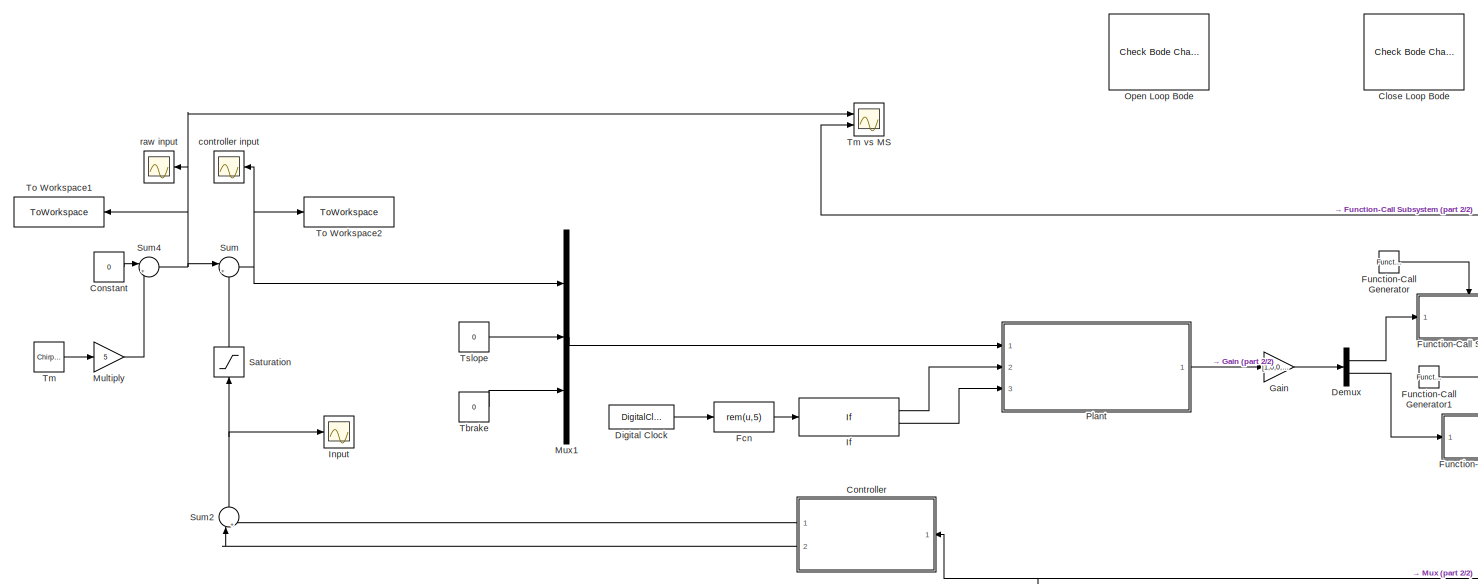
[diagram: root canvas - part 1/2, most of the canvas]
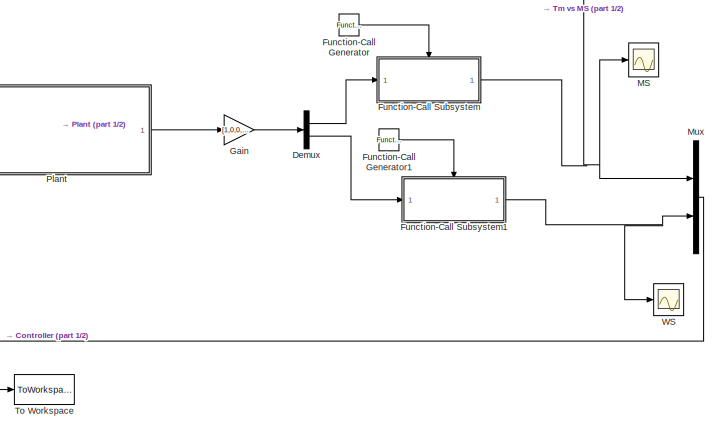
[diagram: root canvas - part 2/2, bottom right region]
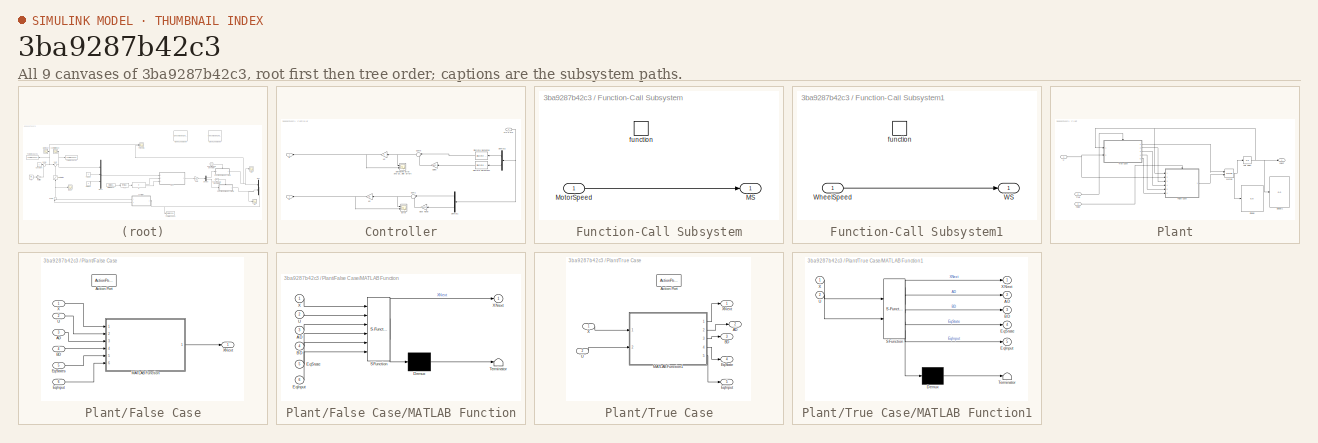
[diagram: thumbnail index - all 9 canvases of the model, root first then tree order]
MODEL slx_3ba9287b42c3
KIND model
CONFIG AbsTol = auto
CONFIG EnableMultiTasking = off
CONFIG FixedStep = auto
CONFIG MaxStep = auto
CONFIG MinStep = auto
CONFIG RelTol = 1e-3
CONFIG SampleTimeConstraint = Unconstrained
CONFIG Solver = FixedStepDiscrete
CONFIG SolverName = FixedStepDiscrete
CONFIG StartTime = 0.0
CONFIG StopTime = 100
BLOCK [Reference] Close Loop Bode  REF=slctrlblks/Model Verification/Check Bode 
Characteristics
  InstantiateOnLoad = on
  Ports = []
  SourceBlock = slctrlblks/Model Verification/Check Bode \nCharacteristics
  SourceProductBaseCode = SD
  SourceProductName = Simulink Control Design
  SourceType = Checks_Bode
BLOCK [Constant] Constant
  Value = 0
BLOCK [SubSystem] Controller
  Ports = [1, 2]
  RequestExecContextInheritance = off
BLOCK [Outport] Controller/D
  IconDisplay = Port number
BLOCK [Demux] Controller/Demux1
  DisplayOption = bar
  Outputs = 2
  Ports = [1, 2]
BLOCK [Demux] Controller/Demux2
  DisplayOption = bar
  Outputs = 2
  Ports = [1, 2]
BLOCK [Scope] Controller/Derivative Error and Controller Effort
  Floating = off
  NumInputPorts = 2
  Ports = [2]
  ScopeSpecificationString = Simulink.scopes.TimeScopeBlockCfg('CurrentConfiguration', extmgr.ConfigurationSet(extmgr.Configuration('Core','General UI',true),extmgr.Configuration('Core','Source UI',true),extmgr.Configuration('Sources','WiredSimulink',true,'DataLoggingVariableName','ScopeData1'),extmgr.Configuration('Visuals','Time Domain',true,'SerializedDisplays',{struct('MinYLimReal','-5.48213','MaxYLimReal','5.48127','YLab...<+1539ch>
BLOCK [Reference] Controller/Discrete Derivative  REF=simulink/Discrete/Discrete Derivative
  Ports = [1, 1]
  SourceBlock = simulink/Discrete/Discrete Derivative
  SourceProductBaseCode = SL
  SourceProductName = Simulink
  SourceType = Discrete Derivative
BLOCK [Reference] Controller/Discrete Derivative1  REF=simulink/Discrete/Discrete Derivative
  Ports = [1, 1]
  SourceBlock = simulink/Discrete/Discrete Derivative
  SourceProductBaseCode = SL
  SourceProductName = Simulink
  SourceType = Discrete Derivative
BLOCK [Scope] Controller/Error 
  Floating = off
  NumInputPorts = 2
  Ports = [2]
  ScopeSpecificationString = Simulink.scopes.TimeScopeBlockCfg('CurrentConfiguration', extmgr.ConfigurationSet(extmgr.Configuration('Core','General UI',true),extmgr.Configuration('Core','Source UI',true),extmgr.Configuration('Sources','WiredSimulink',true,'DataLoggingVariableName','ScopeData3'),extmgr.Configuration('Visuals','Time Domain',true,'SerializedDisplays',{struct('MinYLimReal','-5.56382','MaxYLimReal','5.55543','YLab...<+1539ch>
BLOCK [Gain] Controller/Gain6
  Gain = 6.833
  OutDataTypeStr = Inherit: Inherit via internal rule
  ParamDataTypeStr = Inherit: Inherit via internal rule
  SaturateOnIntegerOverflow = off
BLOCK [Gain] Controller/Gear Ratio
  Gain = 6.83333
  OutDataTypeStr = Inherit: Inherit via internal rule
  ParamDataTypeStr = Inherit: Inherit via internal rule
  SaturateOnIntegerOverflow = off
BLOCK [Inport] Controller/MS & WS
  IconDisplay = Port number
BLOCK [Outport] Controller/P
  IconDisplay = Port number
  Port = 2
BLOCK [Sum] Controller/Sum1
  IconShape = round
  InputSameDT = off
  Inputs = |+-
  OutDataTypeStr = Inherit: Inherit via internal rule
  Ports = [2, 1]
  SaturateOnIntegerOverflow = off
BLOCK [Sum] Controller/Sum5
  IconShape = round
  InputSameDT = off
  Inputs = |+-
  OutDataTypeStr = Inherit: Inherit via internal rule
  Ports = [2, 1]
  SaturateOnIntegerOverflow = off
BLOCK [Gain] Controller/kd
  Gain = 0
  OutDataTypeStr = Inherit: Inherit via internal rule
  ParamDataTypeStr = Inherit: Inherit via internal rule
  SaturateOnIntegerOverflow = off
BLOCK [Gain] Controller/kp
  Gain = 1.5
  OutDataTypeStr = Inherit: Inherit via internal rule
  ParamDataTypeStr = Inherit: Inherit via internal rule
  SaturateOnIntegerOverflow = off
BLOCK [Demux] Demux
  DisplayOption = bar
  Outputs = 2
  Ports = [1, 2]
BLOCK [DigitalClock] Digital Clock
  SampleTime = 0.001
BLOCK [Fcn] Fcn
  Expr = rem(u,5)
BLOCK [Reference] Function-Call Generator  REF=simulink/Ports &
Subsystems/Function-Call
Generator
  Ports = [0, 1]
  SourceBlock = simulink/Ports &\nSubsystems/Function-Call\nGenerator
  SourceProductBaseCode = SL
  SourceProductName = Simulink
  SourceType = Function-Call Generator
BLOCK [Reference] Function-Call Generator1  REF=simulink/Ports &
Subsystems/Function-Call
Generator
  Ports = [0, 1]
  SourceBlock = simulink/Ports &\nSubsystems/Function-Call\nGenerator
  SourceProductBaseCode = SL
  SourceProductName = Simulink
  SourceType = Function-Call Generator
BLOCK [SubSystem] Function-Call Subsystem
  Ports = [1, 1, 0, 1]
  RequestExecContextInheritance = off
  TreatAsAtomicUnit = on
BLOCK [Outport] Function-Call Subsystem/MS
  IconDisplay = Port number
BLOCK [Inport] Function-Call Subsystem/MotorSpeed
  IconDisplay = Port number
BLOCK [TriggerPort] Function-Call Subsystem/function
  Ports = []
  StatesWhenEnabling = held
  TriggerType = function-call
  VariantControl = Variant
BLOCK [SubSystem] Function-Call Subsystem1
  Ports = [1, 1, 0, 1]
  RequestExecContextInheritance = off
  TreatAsAtomicUnit = on
BLOCK [Outport] Function-Call Subsystem1/WS
  IconDisplay = Port number
BLOCK [Inport] Function-Call Subsystem1/WheelSpeed
  IconDisplay = Port number
BLOCK [TriggerPort] Function-Call Subsystem1/function
  Ports = []
  StatesWhenEnabling = held
  TriggerType = function-call
  VariantControl = Variant
BLOCK [Gain] Gain
  Gain = [1,0,0,0,0;0,1,0,0,0]
  Multiplication = Matrix(K*u)
  OutDataTypeStr = Inherit: Inherit via internal rule
  ParamDataTypeStr = Inherit: Inherit via internal rule
  SaturateOnIntegerOverflow = off
BLOCK [If] If
  ElseIfExpressions = u1 ~=0
  IfExpression = u1 == 0
  Ports = [1, 2]
  ShowElse = off
BLOCK [Scope] Input 
  Floating = off
  NumInputPorts = 1
  Ports = [1]
  ScopeSpecificationString = Simulink.scopes.TimeScopeBlockCfg('CurrentConfiguration', extmgr.ConfigurationSet(extmgr.Configuration('Core','General UI',true),extmgr.Configuration('Core','Source UI',true),extmgr.Configuration('Sources','WiredSimulink',true,'DataLoggingVariableName','ScopeData1'),extmgr.Configuration('Visuals','Time Domain',true,'SerializedDisplays',{struct('MinYLimReal','-9.12246','MaxYLimReal','9.11776','YLab...<+1405ch>
BLOCK [Scope] MS
  Floating = off
  NumInputPorts = 1
  Ports = [1]
  ScopeSpecificationString = Simulink.scopes.TimeScopeBlockCfg('CurrentConfiguration', extmgr.ConfigurationSet(extmgr.Configuration('Core','General UI',true),extmgr.Configuration('Core','Source UI',true),extmgr.Configuration('Sources','WiredSimulink',true),extmgr.Configuration('Visuals','Time Domain',true,'SerializedDisplays',{struct('MinYLimReal','-1.26885','MaxYLimReal','12.10291','YLabelReal','','MinYLimMag','0.00000','Max...<+1402ch>
BLOCK [Gain] Multiply
  Gain = 5
  OutDataTypeStr = Inherit: Inherit via internal rule
  ParamDataTypeStr = Inherit: Inherit via internal rule
  SaturateOnIntegerOverflow = off
BLOCK [Mux] Mux
  DisplayOption = bar
  Inputs = 2
  Ports = [2, 1]
BLOCK [Mux] Mux1
  DisplayOption = bar
  Inputs = 3
  Ports = [3, 1]
BLOCK [Reference] Open Loop Bode  REF=slctrlblks/Model Verification/Check Bode 
Characteristics
  InstantiateOnLoad = on
  Ports = []
  SourceBlock = slctrlblks/Model Verification/Check Bode \nCharacteristics
  SourceProductBaseCode = SD
  SourceProductName = Simulink Control Design
  SourceType = Checks_Bode
BLOCK [SubSystem] Plant
  Ports = [3, 1]
  RequestExecContextInheritance = off
BLOCK [Display] Plant/Display
  Decimation = 1
  Ports = [1]
BLOCK [Display] Plant/Display1
  Decimation = 1
  Ports = [1]
BLOCK [Inport] Plant/False
  IconDisplay = Port number
  Port = 3
BLOCK [SubSystem] Plant/False Case
  Ports = [6, 1, 0, 0, 0, 0, 0, 1]
  RequestExecContextInheritance = off
  TreatAsAtomicUnit = on
BLOCK [Inport] Plant/False Case/AD
  IconDisplay = Port number
  Port = 3
BLOCK [ActionPort] Plant/False Case/Action Port
  ActionPortLabel = elseif(u1 ~=0)
BLOCK [Inport] Plant/False Case/BD
  IconDisplay = Port number
  Port = 4
BLOCK [Inport] Plant/False Case/EqInput
  IconDisplay = Port number
  Port = 6
BLOCK [Inport] Plant/False Case/EqStates
  IconDisplay = Port number
  Port = 5
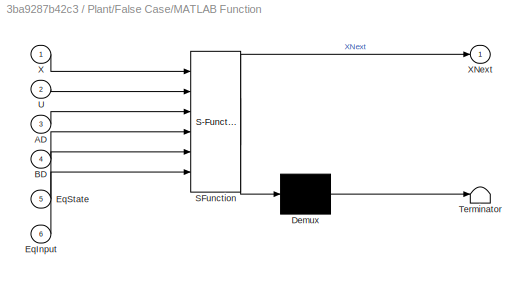
BLOCK [SubSystem] Plant/False Case/MATLAB Function
  ErrorFcn = Stateflow.Translate.translate
  PermitHierarchicalResolution = ExplicitOnly
  Ports = [6, 1]
  RequestExecContextInheritance = off
  SFBlockType = MATLAB Function
  TreatAsAtomicUnit = on
BLOCK [Demux] Plant/False Case/MATLAB Function/ Demux 
  Outputs = 1
  Ports = [1, 1]
BLOCK [S-Function] Plant/False Case/MATLAB Function/ SFunction 
  EnableBusSupport = on
  FunctionName = sf_sfun
  PortCounts = [6 2]
  Ports = [6, 2]
  SFcnIsStateOwnerBlock = off
  SFunctionDeploymentMode = off
  Tag = Stateflow S-Function Close_Loop 1
BLOCK [Terminator] Plant/False Case/MATLAB Function/ Terminator 
BLOCK [Inport] Plant/False Case/MATLAB Function/AD
  IconDisplay = Port number
  Port = 3
BLOCK [Inport] Plant/False Case/MATLAB Function/BD
  IconDisplay = Port number
  Port = 4
BLOCK [Inport] Plant/False Case/MATLAB Function/EqInput
  IconDisplay = Port number
  Port = 6
BLOCK [Inport] Plant/False Case/MATLAB Function/EqState
  IconDisplay = Port number
  Port = 5
BLOCK [Inport] Plant/False Case/MATLAB Function/U
  IconDisplay = Port number
  Port = 2
BLOCK [Inport] Plant/False Case/MATLAB Function/X
  IconDisplay = Port number
BLOCK [Outport] Plant/False Case/MATLAB Function/XNext
  IconDisplay = Port number
BLOCK [Inport] Plant/False Case/U
  IconDisplay = Port number
  Port = 2
BLOCK [Inport] Plant/False Case/X
  IconDisplay = Port number
BLOCK [Outport] Plant/False Case/XNext
  IconDisplay = Port number
BLOCK [Merge] Plant/Merge
  Ports = [2, 1]
BLOCK [Inport] Plant/True
  IconDisplay = Port number
  Port = 2
BLOCK [SubSystem] Plant/True Case
  Ports = [2, 5, 0, 0, 0, 0, 0, 1]
  RequestExecContextInheritance = off
  TreatAsAtomicUnit = on
BLOCK [Outport] Plant/True Case/AD
  IconDisplay = Port number
  Port = 2
BLOCK [ActionPort] Plant/True Case/Action Port
  ActionPortLabel = if(u1 == 0)
BLOCK [Outport] Plant/True Case/BD
  IconDisplay = Port number
  Port = 3
BLOCK [Outport] Plant/True Case/EqInput
  IconDisplay = Port number
  Port = 5
BLOCK [Outport] Plant/True Case/EqState
  IconDisplay = Port number
  Port = 4
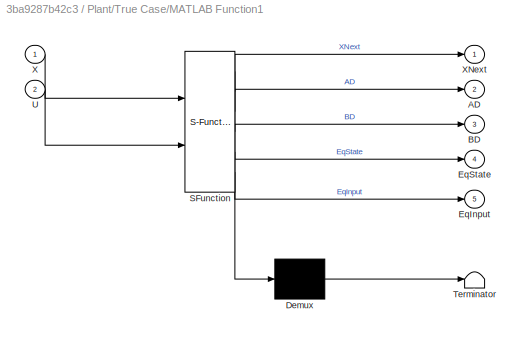
BLOCK [SubSystem] Plant/True Case/MATLAB Function1
  ErrorFcn = Stateflow.Translate.translate
  PermitHierarchicalResolution = ExplicitOnly
  Ports = [2, 5]
  RequestExecContextInheritance = off
  SFBlockType = MATLAB Function
  TreatAsAtomicUnit = on
BLOCK [Demux] Plant/True Case/MATLAB Function1/ Demux 
  Outputs = 1
  Ports = [1, 1]
BLOCK [S-Function] Plant/True Case/MATLAB Function1/ SFunction 
  EnableBusSupport = on
  FunctionName = sf_sfun
  PortCounts = [2 6]
  Ports = [2, 6]
  SFcnIsStateOwnerBlock = off
  SFunctionDeploymentMode = off
  Tag = Stateflow S-Function Close_Loop 7
BLOCK [Terminator] Plant/True Case/MATLAB Function1/ Terminator 
BLOCK [Outport] Plant/True Case/MATLAB Function1/AD
  IconDisplay = Port number
  Port = 2
BLOCK [Outport] Plant/True Case/MATLAB Function1/BD
  IconDisplay = Port number
  Port = 3
BLOCK [Outport] Plant/True Case/MATLAB Function1/EqInput
  IconDisplay = Port number
  Port = 5
BLOCK [Outport] Plant/True Case/MATLAB Function1/EqState
  IconDisplay = Port number
  Port = 4
BLOCK [Inport] Plant/True Case/MATLAB Function1/U
  IconDisplay = Port number
  Port = 2
BLOCK [Inport] Plant/True Case/MATLAB Function1/X
  IconDisplay = Port number
BLOCK [Outport] Plant/True Case/MATLAB Function1/XNext
  IconDisplay = Port number
BLOCK [Inport] Plant/True Case/U
  IconDisplay = Port number
  Port = 2
BLOCK [Inport] Plant/True Case/X
  IconDisplay = Port number
BLOCK [Outport] Plant/True Case/XNext
  IconDisplay = Port number
BLOCK [Inport] Plant/U
  IconDisplay = Port number
BLOCK [UnitDelay] Plant/Unit Delay
  HasFrameUpgradeWarning = on
  InitialCondition = [0.01*6.833;0.01;0.01;0;0]
  SampleTime = 0.001
BLOCK [Outport] Plant/XNext 
  IconDisplay = Port number
BLOCK [Saturate] Saturation
  InputPortMap = u0
  LowerLimit = -50
  Ports = [1, 1]
  UpperLimit = 50
BLOCK [Sum] Sum
  IconShape = round
  InputSameDT = off
  Inputs = |+-
  OutDataTypeStr = Inherit: Inherit via internal rule
  Ports = [2, 1]
  SaturateOnIntegerOverflow = off
BLOCK [Sum] Sum2
  IconShape = round
  InputSameDT = off
  Inputs = |+|+
  OutDataTypeStr = Inherit: Inherit via internal rule
  Ports = [2, 1]
  SaturateOnIntegerOverflow = off
BLOCK [Sum] Sum4
  IconShape = round
  InputSameDT = off
  Inputs = |++
  OutDataTypeStr = Inherit: Inherit via internal rule
  Ports = [2, 1]
  SaturateOnIntegerOverflow = off
BLOCK [Constant] Tbrake
  Value = 0
BLOCK [Reference] Tm  REF=simulink/Sources/Chirp Signal
  Ports = [0, 1]
  SourceBlock = simulink/Sources/Chirp Signal
  SourceProductBaseCode = SL
  SourceProductName = Simulink
  SourceType = chirp
BLOCK [Scope] Tm vs MS
  Floating = off
  NumInputPorts = 2
  Ports = [2]
  ScopeSpecificationString = Simulink.scopes.TimeScopeBlockCfg('CurrentConfiguration', extmgr.ConfigurationSet(extmgr.Configuration('Core','General UI',true),extmgr.Configuration('Core','Source UI',true),extmgr.Configuration('Sources','WiredSimulink',true,'DataLoggingVariableName','ScopeData5'),extmgr.Configuration('Visuals','Time Domain',true,'SerializedDisplays',{struct('MinYLimReal','-6.90798','MaxYLimReal','12.17182','YLa...<+1464ch>
BLOCK [ToWorkspace] To Workspace
  FixptAsFi = on
  MaxDataPoints = inf
  Ports = [1]
  SampleTime = -1
  SaveFormat = Timeseries
  VariableName = simout
BLOCK [ToWorkspace] To Workspace1
  FixptAsFi = on
  MaxDataPoints = inf
  Ports = [1]
  SampleTime = -1
  SaveFormat = Timeseries
  VariableName = rawinput
BLOCK [ToWorkspace] To Workspace2
  FixptAsFi = on
  MaxDataPoints = inf
  Ports = [1]
  SampleTime = -1
  SaveFormat = Timeseries
  VariableName = controllerinput
BLOCK [Constant] Tslope 
  Value = 0
BLOCK [Scope] WS
  Floating = off
  NumInputPorts = 1
  Ports = [1]
  ScopeSpecificationString = Simulink.scopes.TimeScopeBlockCfg('CurrentConfiguration', extmgr.ConfigurationSet(extmgr.Configuration('Core','General UI',true),extmgr.Configuration('Core','Source UI',true),extmgr.Configuration('Sources','WiredSimulink',true,'DataLoggingVariableName','ScopeData4'),extmgr.Configuration('Visuals','Time Domain',true,'SerializedDisplays',{struct('MinYLimReal','-0.17399','MaxYLimReal','1.6659','YLabe...<+1379ch>
BLOCK [Scope] controller input
  Floating = off
  NumInputPorts = 1
  Ports = [1]
  ScopeSpecificationString = Simulink.scopes.TimeScopeBlockCfg('CurrentConfiguration', extmgr.ConfigurationSet(extmgr.Configuration('Core','General UI',true),extmgr.Configuration('Core','Source UI',true),extmgr.Configuration('Sources','WiredSimulink',true,'DataLoggingVariableName','ScopeData1'),extmgr.Configuration('Visuals','Time Domain',true,'SerializedDisplays',{struct('MinYLimReal','-11.5449','MaxYLimReal','11.5381','YLab...<+1447ch>
BLOCK [Scope] raw input
  Floating = off
  NumInputPorts = 1
  Ports = [1]
  ScopeSpecificationString = Simulink.scopes.TimeScopeBlockCfg('CurrentConfiguration', extmgr.ConfigurationSet(extmgr.Configuration('Core','General UI',true),extmgr.Configuration('Core','Source UI',true),extmgr.Configuration('Sources','WiredSimulink',true,'DataLoggingVariableName','ScopeData2'),extmgr.Configuration('Visuals','Time Domain',true,'SerializedDisplays',{struct('MinYLimReal','-6.25','MaxYLimReal','6.25','YLabelReal...<+1453ch>
LINE Constant:1 -> Sum4:1
LINE Controller/Demux1:1 -> Controller/Sum1:1
LINE Controller/Demux1:2 -> Controller/Gear Ratio:1
LINE Controller/Demux2:1 -> Controller/Discrete Derivative:1
LINE Controller/Demux2:2 -> Controller/Discrete Derivative1:1
LINE Controller/Discrete Derivative1:1 -> Controller/Gain6:1
LINE Controller/Discrete Derivative:1 -> Controller/Sum5:1
LINE Controller/Gain6:1 -> Controller/Sum5:2
LINE Controller/Gear Ratio:1 -> Controller/Sum1:2
NET Controller/MS & WS:1 -> Controller/Demux1:1, Controller/Demux2:1
NET Controller/Sum1:1 -> Controller/Error :1, Controller/kp:1
NET Controller/Sum5:1 -> Controller/Derivative Error and Controller Effort:1, Controller/kd:1
NET Controller/kd:1 -> Controller/D:1, Controller/Derivative Error and Controller Effort:2
NET Controller/kp:1 -> Controller/Error :2, Controller/P:1
LINE Controller:1 -> Sum2:2
LINE Controller:2 -> Sum2:1
LINE Demux:1 -> Function-Call Subsystem:1
LINE Demux:2 -> Function-Call Subsystem1:1
LINE Digital Clock:1 -> Fcn:1
LINE Fcn:1 -> If:1
LINE Function-Call Generator1:1 -> Function-Call Subsystem1:trigger
LINE Function-Call Generator:1 -> Function-Call Subsystem:trigger
LINE Function-Call Subsystem/MotorSpeed:1 -> Function-Call Subsystem/MS:1
LINE Function-Call Subsystem1/WheelSpeed:1 -> Function-Call Subsystem1/WS:1
NET Function-Call Subsystem1:1 -> Mux:2, WS:1
NET Function-Call Subsystem:1 -> MS:1, Mux:1, Tm vs MS:2
LINE Gain:1 -> Demux:1
LINE If:1 -> Plant:2
LINE If:2 -> Plant:3
LINE Multiply:1 -> Sum4:2
LINE Mux1:1 -> Plant:1
NET Mux:1 -> Controller:1, To Workspace:1
LINE Plant/False Case/AD:1 -> Plant/False Case/MATLAB Function:3
LINE Plant/False Case/BD:1 -> Plant/False Case/MATLAB Function:4
LINE Plant/False Case/EqInput:1 -> Plant/False Case/MATLAB Function:6
LINE Plant/False Case/EqStates:1 -> Plant/False Case/MATLAB Function:5
LINE Plant/False Case/MATLAB Function:1 -> Plant/False Case/XNext:1
LINE Plant/False Case/U:1 -> Plant/False Case/MATLAB Function:2
LINE Plant/False Case/X:1 -> Plant/False Case/MATLAB Function:1
LINE Plant/False Case:1 -> Plant/Merge:2
LINE Plant/False:1 -> Plant/False Case:ifaction
NET Plant/Merge:1 -> Plant/Display:1, Plant/Unit Delay:1
LINE Plant/True Case/MATLAB Function1:1 -> Plant/True Case/XNext:1
LINE Plant/True Case/MATLAB Function1:2 -> Plant/True Case/AD:1
LINE Plant/True Case/MATLAB Function1:3 -> Plant/True Case/BD:1
LINE Plant/True Case/MATLAB Function1:4 -> Plant/True Case/EqState:1
LINE Plant/True Case/MATLAB Function1:5 -> Plant/True Case/EqInput:1
LINE Plant/True Case/U:1 -> Plant/True Case/MATLAB Function1:2
LINE Plant/True Case/X:1 -> Plant/True Case/MATLAB Function1:1
LINE Plant/True Case:1 -> Plant/Merge:1
LINE Plant/True Case:2 -> Plant/False Case:3
LINE Plant/True Case:3 -> Plant/False Case:4
LINE Plant/True Case:4 -> Plant/False Case:5
LINE Plant/True Case:5 -> Plant/False Case:6
LINE Plant/True:1 -> Plant/True Case:ifaction
NET Plant/U:1 -> Plant/False Case:2, Plant/True Case:2
NET Plant/Unit Delay:1 -> Plant/Display1:1, Plant/False Case:1, Plant/True Case:1, Plant/XNext :1
LINE Plant:1 -> Gain:1
LINE Saturation:1 -> Sum:2
NET Sum2:1 -> Input :1, Saturation:1
NET Sum4:1 -> Sum:1, Tm vs MS:1, To Workspace1:1, raw input:1
NET Sum:1 -> Mux1:1, To Workspace2:1, controller input:1
LINE Tbrake:1 -> Mux1:3
LINE Tm:1 -> Multiply:1
LINE Tslope :1 -> Mux1:2
note: NET lines group one-source signal fan-out (src -> all destinations, sorted); 1:1 wires keep LINE
CHART Plant/False Case/MATLAB Function states=1 transitions=1
  STATE_LABEL 'eML_blk_kernel()'
  STATE_LABEL 'SCRIPT:\nfunction XNext = StateSpace(X,U,AD,BD,EqState,EqInput)\n\nXNext = AD*(X-EqState)+BD*(U-EqInput)+EqState;\nend\n'
CHART Plant/True Case/MATLAB Function1 states=1 transitions=1
  STATE_LABEL 'eML_blk_kernel()'
  STATE_LABEL "SCRIPT:\nfunction [XNext,AD,BD,EqState,EqInput] = StateSpace(X,U)\n% Initilized the size of the matrices\n% Get linearized matrices and eq points\ncoder.extrinsic('LinearForSim')\n% Get Discretized Matrices\ncoder.extrinsic('StateSpace')\n\nAD = zeros(5,5);\nBD = zeros(5,3);\nEqState = zeros(5,1);\nEqInput = zeros(3,1);\n\nVehicleSpeed = X(3);\nTslope = U(2);\nTbrake = U(3);\n\n[LinearMatrix, EqPoints] = LinearFor...<+177ch>"
